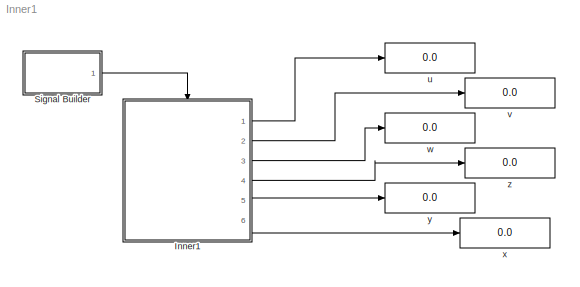
MODEL Inner1
KIND model
CONFIG AbsTol = auto
CONFIG FixedStep = auto
CONFIG MaxStep = auto
CONFIG MinStep = auto
CONFIG RelTol = 1e-3
CONFIG Solver = ode45
CONFIG SolverMode = Auto
CONFIG StartTime = 0.0
CONFIG StopTime = 10.0
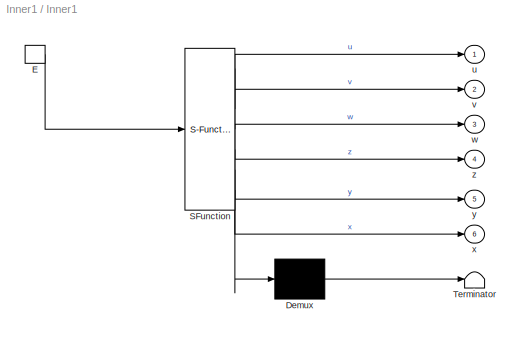
BLOCK [SubSystem] Inner1
  MaskDescription = Stateflow diagram
  MaskDisplay = plot(sf('Private','sfblk','xIcon'),sf('Private','sfblk','yIcon'));text(0.5,0,sf('Private', 'sfblk', 'tIcon'),'HorizontalAl','Center','VerticalAl','Bottom');
  MaskIconFrame = off
  MaskIconOpaque = off
  MaskIconRotate = none
  MaskIconUnits = autoscale
  MaskSelfModifiable = on
  MaskType = Stateflow
  Ports = [0, 6, 0, 1]
  TreatAsAtomicUnit = off
BLOCK [Demux] Inner1/ Demux 
  Outputs = 1
  Ports = [1, 1]
BLOCK [S-Function] Inner1/ SFunction 
  FunctionName = sf_sfun
  PortCounts = [1 7]
  Ports = [1, 7]
  Tag = Stateflow S-Function Inner1 1
BLOCK [Terminator] Inner1/ Terminator 
BLOCK [TriggerPort] Inner1/E
  Ports = [0, 1]
  ShowOutputPort = on
  TriggerType = either
BLOCK [Outport] Inner1/u
BLOCK [Outport] Inner1/v
  Port = 2
BLOCK [Outport] Inner1/w
  Port = 3
BLOCK [Outport] Inner1/x
  Port = 6
BLOCK [Outport] Inner1/y
  Port = 5
BLOCK [Outport] Inner1/z
  Port = 4
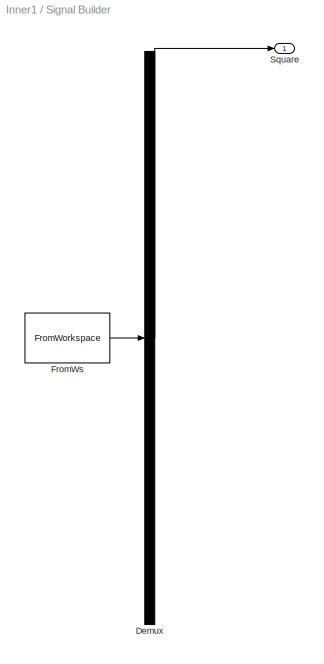
BLOCK [SubSystem] Signal Builder
  ClipboardFcn = sigbuilder_block('clipboard');
  CloseFcn = sigbuilder_block('close');
  CopyFcn = sigbuilder_block('copy');
  DeleteFcn = sigbuilder_block('delete');
  MaskDescription = Sigbuilder GUI
  MaskDisplay = plot(0,0,100,100,[10,10,40,40,10],[80,20,20,80,80],[40,10],[50,50], [40,27,10],[65,72,56],[40,25,25,10],[28,28,43,43]);
  MaskIconFrame = on
  MaskIconOpaque = off
  MaskIconRotate = port
  MaskIconUnits = autoscale
  MaskInitialization = if ~strcmp(get_param(bdroot(gcb),'SimulationStatus'),'stopped') tuvar = sigbuilder_block('maskInit'); end
  MaskType = Sigbuilder block
  ModelCloseFcn = sigbuilder_block('modelClose');
  NameChangeFcn = sigbuilder_block('namechange');
  OpenFcn = sigbuilder_block('open',[50 50 520 400 ]);
  Ports = [0, 1]
  PreSaveFcn = sigbuilder_block('preSave');
  StartFcn = sigbuilder_block('start');
  StopFcn = sigbuilder_block('stop');
  Tag = STV Subsys
  TreatAsAtomicUnit = off
BLOCK [Demux] Signal Builder/Demux
  Outputs = 1
  Ports = [1, 1]
  Tag = STV Demux
BLOCK [FromWorkspace] Signal Builder/FromWs
  SampleTime = 0
  SigBuilderData = DataTag0
  Tag = STV FromWs
  VariableName = tuvar
BLOCK [Outport] Signal Builder/Square
  Tag = STV Outport
BLOCK [Display] u
  Decimation = 1
  Format = long
  Ports = [1]
BLOCK [Display] v
  Decimation = 1
  Format = long
  Ports = [1]
BLOCK [Display] w
  Decimation = 1
  Format = long
  Ports = [1]
BLOCK [Display] x
  Decimation = 1
  Format = long
  Ports = [1]
BLOCK [Display] y
  Decimation = 1
  Format = long
  Ports = [1]
BLOCK [Display] z
  Decimation = 1
  Format = long
  Ports = [1]
LINE Inner1/ Demux :1 -> Inner1/ Terminator :1
LINE Inner1/ SFunction :1 -> Inner1/ Demux :1
LINE Inner1/ SFunction :2 -> Inner1/u:1
LINE Inner1/ SFunction :3 -> Inner1/v:1
LINE Inner1/ SFunction :4 -> Inner1/w:1
LINE Inner1/ SFunction :5 -> Inner1/z:1
LINE Inner1/ SFunction :6 -> Inner1/y:1
LINE Inner1/ SFunction :7 -> Inner1/x:1
LINE Inner1/E:1 -> Inner1/ SFunction :1
LINE Inner1:1 -> u:1
LINE Inner1:2 -> v:1
LINE Inner1:3 -> w:1
LINE Inner1:4 -> z:1
LINE Inner1:5 -> y:1
LINE Inner1:6 -> x:1
LINE Signal Builder/Demux:1 -> Signal Builder/Square:1
LINE Signal Builder/FromWs:1 -> Signal Builder/Demux:1
LINE Signal Builder:1 -> Inner1:trigger
CHART Inner1 states=5 transitions=6
  STATE_LABEL 'A/\\ndu: u++;'
  STATE_LABEL 'A1/\\nen: x+=1;\\ndu: x+=10;'
  STATE_LABEL 'A2/\\nen: x+=1000;\\ndu: x+=10000;'
  STATE_LABEL 'A3/\\nex: v+=1000;'
  STATE_LABEL 'A3a/\\nex: v+=10000;'
